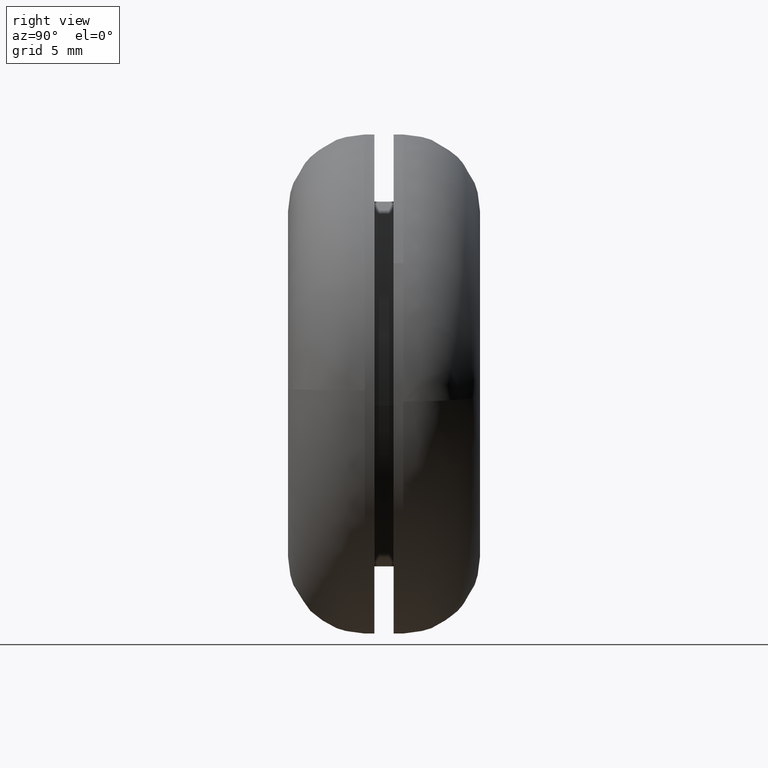
[diagram: clean part render]
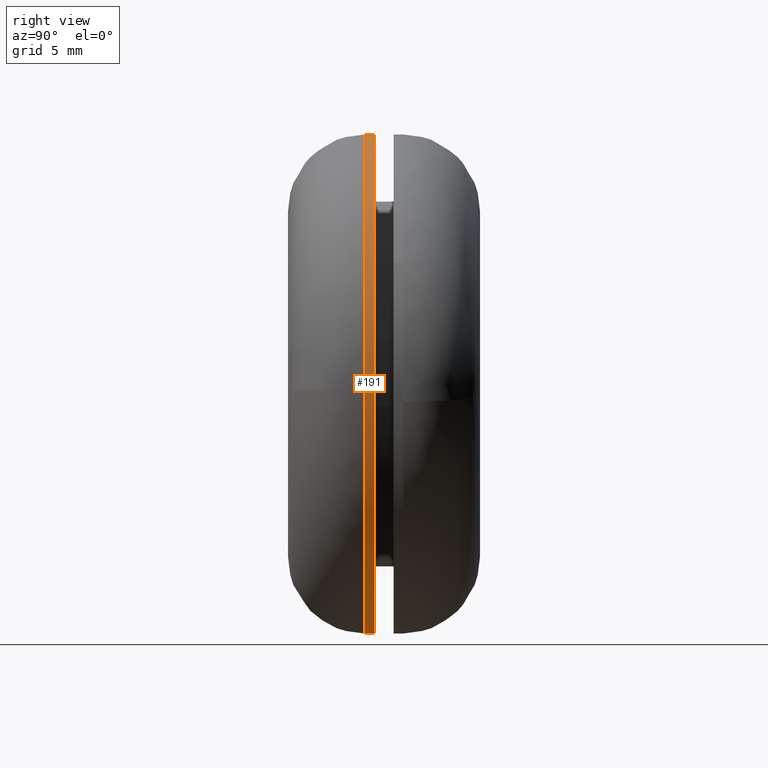
[diagram: same view with one face highlighted and labeled with its STEP entity id]
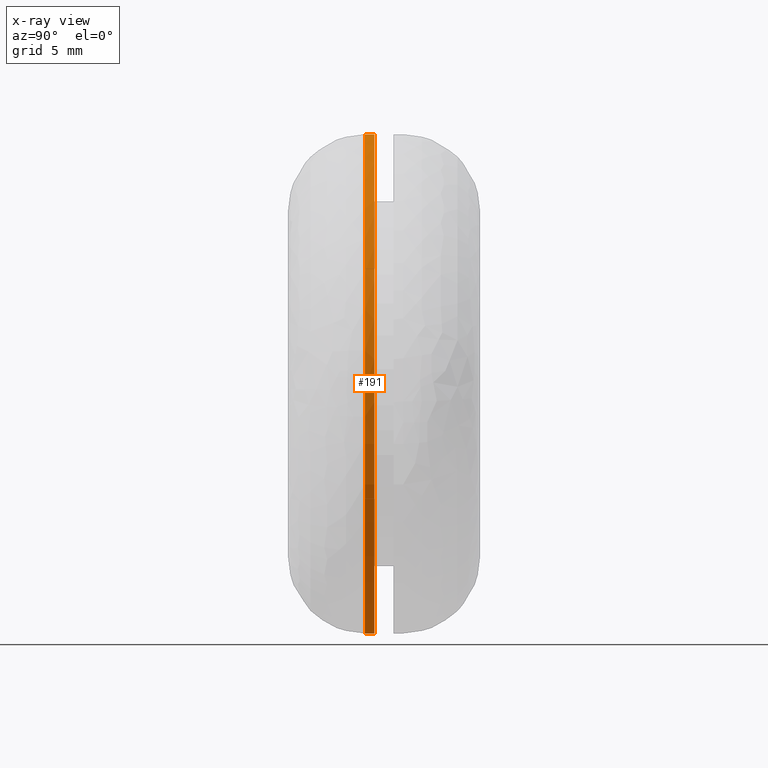
[diagram: x-ray of the same camera — body ghosted, the highlighted face saturated]
A machine part, right view. The second image highlights one B-rep face of the part: STEP entity #191.
The next image is the same camera in x-ray: the body ghosted, the highlighted face saturated — about 0% of this face is hidden behind the body in this view.
In plain terms, the highlighted face is a freeform B-spline surface patch.
Its self-contained STEP definition (entity closure, byte-faithful):
#44=CARTESIAN_POINT('',(-8.506415541035160,4.512500000000001,-9.830610084996524));
#45=CARTESIAN_POINT('',(0.247661153719898,4.512500000000001,-17.405502528073665));
#46=CARTESIAN_POINT('',(8.782672699003580,4.512500000000001,-9.584605378531608));
#47=CARTESIAN_POINT('',(18.367278077535193,4.512500000000001,-0.801932679528027));
#48=CARTESIAN_POINT('',(9.584605378531608,4.512500000000001,8.782672699003580));
#49=CARTESIAN_POINT('',(0.801932679528027,4.512500000000001,18.367278077535193));
#50=CARTESIAN_POINT('',(-8.782672699003580,4.512500000000001,9.584605378531608));
#51=CARTESIAN_POINT('',(-8.506415541035160,3.987187499999999,-9.830610084996524));
#52=CARTESIAN_POINT('',(0.247661153719898,3.987187500000001,-17.405502528073665));
#53=CARTESIAN_POINT('',(8.782672699003580,3.987187500000000,-9.584605378531608));
#54=CARTESIAN_POINT('',(18.367278077535193,3.987187500000001,-0.801932679528027));
#55=CARTESIAN_POINT('',(9.584605378531608,3.987187500000000,8.782672699003580));
#56=CARTESIAN_POINT('',(0.801932679528027,3.987187500000001,18.367278077535193));
#57=CARTESIAN_POINT('',(-8.782672699003580,3.987187500000000,9.584605378531608));
#65=(BOUNDED_SURFACE()B_SPLINE_SURFACE(2,1,((#44,#51),(#45,#52),(#46,#53),(#47,#54),(#48,#55),(#49,#56),(#50,#57)),.UNSPECIFIED.,.F.,.F.,.U.)B_SPLINE_SURFACE_WITH_KNOTS((3,2,2,3),(2,2),(0.0,19.815976823928860,41.355082067329803,62.894187310730729),(0.0,1.0),.UNSPECIFIED.)GEOMETRIC_REPRESENTATION_ITEM()RATIONAL_B_SPLINE_SURFACE(((0.956886118190660,0.956886118190660),(0.730538238691624,0.730538238691624),(1.0,1.0),(0.707106781186548,0.707106781186548),(1.0,1.0),(0.707106781186548,0.707106781186548),(1.0,1.0)))REPRESENTATION_ITEM('')SURFACE());
#66=CARTESIAN_POINT('',(-8.506415111618846,4.500000000000044,-9.830610456569934));
#67=VERTEX_POINT('',#66);
#68=CARTESIAN_POINT('',(0.0,4.500000000000000,-13.0));
#69=VERTEX_POINT('',#68);
#70=CARTESIAN_POINT('',(-8.506415111618846,4.500000000000044,-9.830610456569934));
#71=CARTESIAN_POINT('',(-4.843645739531268,4.500000000000000,-13.000000000000005));
#72=CARTESIAN_POINT('',(0.0,4.500000000000000,-13.0));
#80=(BOUNDED_CURVE()B_SPLINE_CURVE(2,(#70,#71,#72),.UNSPECIFIED.,.F.,.U.)B_SPLINE_CURVE_WITH_KNOTS((3,3),(0.885882133147832,1.0),.UNSPECIFIED.)CURVE()GEOMETRIC_REPRESENTATION_ITEM()RATIONAL_B_SPLINE_CURVE((0.854663299575205,0.866302602614174,1.0))REPRESENTATION_ITEM(''));
#81=EDGE_CURVE('',#67,#69,#80,.T.);
#82=ORIENTED_EDGE('',*,*,#81,.T.);
#83=CARTESIAN_POINT('',(0.0,4.500000000000000,13.0));
#84=VERTEX_POINT('',#83);
#85=CARTESIAN_POINT('',(0.0,4.500000000000000,-13.0));
#86=CARTESIAN_POINT('',(13.0,4.500000000000000,-13.0));
#87=CARTESIAN_POINT('',(13.0,4.500000000000000,-2.449213E-016));
#88=CARTESIAN_POINT('',(13.0,4.500000000000000,13.0));
#89=CARTESIAN_POINT('',(0.0,4.500000000000000,13.0));
#97=(BOUNDED_CURVE()B_SPLINE_CURVE(2,(#85,#86,#87,#88,#89),.UNSPECIFIED.,.F.,.U.)B_SPLINE_CURVE_WITH_KNOTS((3,2,3),(0.0,0.250000000000000,0.500000000000000),.UNSPECIFIED.)CURVE()GEOMETRIC_REPRESENTATION_ITEM()RATIONAL_B_SPLINE_CURVE((1.0,0.707106781186547,1.0,0.707106781186547,1.0))REPRESENTATION_ITEM(''));
#98=EDGE_CURVE('',#69,#84,#97,.T.);
#99=ORIENTED_EDGE('',*,*,#98,.T.);
#100=CARTESIAN_POINT('',(-8.782672184095716,4.500000000000000,9.584605850357690));
#101=VERTEX_POINT('',#100);
#102=CARTESIAN_POINT('',(0.0,4.500000000000000,13.0));
#103=CARTESIAN_POINT('',(-5.055422710082569,4.500000000000000,13.000000000000002));
#104=CARTESIAN_POINT('',(-8.782672184095716,4.500000000000001,9.584605850357690));
#112=(BOUNDED_CURVE()B_SPLINE_CURVE(2,(#102,#103,#104),.UNSPECIFIED.,.F.,.U.)B_SPLINE_CURVE_WITH_KNOTS((3,3),(0.500000000000000,0.618415192864190),.UNSPECIFIED.)CURVE()GEOMETRIC_REPRESENTATION_ITEM()RATIONAL_B_SPLINE_CURVE((1.0,0.861267972022367,0.853959782840026))REPRESENTATION_ITEM(''));
#113=EDGE_CURVE('',#84,#101,#112,.T.);
#114=ORIENTED_EDGE('',*,*,#113,.T.);
#115=CARTESIAN_POINT('',(-8.782672160673663,4.000002019822239,9.584605871818566));
#116=VERTEX_POINT('',#115);
#117=CARTESIAN_POINT('',(-8.782672184095716,4.500000000000000,9.584605850357690));
#118=CARTESIAN_POINT('',(-8.782672160673663,4.000002019822239,9.584605871818566));
#119=QUASI_UNIFORM_CURVE('',1,(#117,#118),.UNSPECIFIED.,.F.,.U.);
#120=EDGE_CURVE('',#101,#116,#119,.T.);
#121=ORIENTED_EDGE('',*,*,#120,.T.);
#122=CARTESIAN_POINT('',(0.0,4.0,13.0));
#123=VERTEX_POINT('',#122);
#124=CARTESIAN_POINT('',(0.0,4.0,13.0));
#125=CARTESIAN_POINT('',(-5.055422673511163,4.000000842962812,12.999999999999972));
#126=CARTESIAN_POINT('',(-8.782672160673663,4.000002019822239,9.584605871818566));
#134=(BOUNDED_CURVE()B_SPLINE_CURVE(2,(#124,#125,#126),.UNSPECIFIED.,.F.,.U.)B_SPLINE_CURVE_WITH_KNOTS((3,3),(0.500000000000000,0.618415192126431),.UNSPECIFIED.)CURVE()GEOMETRIC_REPRESENTATION_ITEM()RATIONAL_B_SPLINE_CURVE((1.0,0.861267972886705,0.853959782931090))REPRESENTATION_ITEM(''));
#135=EDGE_CURVE('',#123,#116,#134,.T.);
#136=ORIENTED_EDGE('',*,*,#135,.F.);
#137=CARTESIAN_POINT('',(12.995894645944650,4.000004227741041,-0.326683870640508));
#138=VERTEX_POINT('',#137);
#139=CARTESIAN_POINT('',(12.995894645944643,4.000004227741041,-0.326683870640508));
#140=CARTESIAN_POINT('',(12.999999999993484,4.000004201835933,-0.163367730796137));
#141=CARTESIAN_POINT('',(12.999999999993520,4.000004175271455,1.632349E-013));
#142=CARTESIAN_POINT('',(12.999999999996801,4.000002061400934,13.000000000000082));
#143=CARTESIAN_POINT('',(0.0,4.0,13.0));
#151=(BOUNDED_CURVE()B_SPLINE_CURVE(2,(#139,#140,#141,#142,#143),.UNSPECIFIED.,.F.,.U.)B_SPLINE_CURVE_WITH_KNOTS((3,2,3),(0.245579991001986,0.250000000000000,0.500000000000000),.UNSPECIFIED.)CURVE()GEOMETRIC_REPRESENTATION_ITEM()RATIONAL_B_SPLINE_CURVE((0.989826381975178,0.994821637349549,1.0,0.707106781186547,1.0))REPRESENTATION_ITEM(''));
#152=EDGE_CURVE('',#138,#123,#151,.T.);
#153=ORIENTED_EDGE('',*,*,#152,.F.);
#154=CARTESIAN_POINT('',(0.0,4.0,-13.0));
#155=VERTEX_POINT('',#154);
#156=CARTESIAN_POINT('',(0.0,4.0,-13.0));
#157=CARTESIAN_POINT('',(12.677319582069439,4.000002113870520,-12.999999999999917));
#158=CARTESIAN_POINT('',(12.995894645944643,4.000004227741041,-0.326683870640508));
#166=(BOUNDED_CURVE()B_SPLINE_CURVE(2,(#156,#157,#158),.UNSPECIFIED.,.F.,.U.)B_SPLINE_CURVE_WITH_KNOTS((3,3),(0.0,0.245579991001986),.UNSPECIFIED.)CURVE()GEOMETRIC_REPRESENTATION_ITEM()RATIONAL_B_SPLINE_CURVE((1.0,0.712285143836998,0.989826381975178))REPRESENTATION_ITEM(''));
#167=EDGE_CURVE('',#155,#138,#166,.T.);
#168=ORIENTED_EDGE('',*,*,#167,.F.);
#169=CARTESIAN_POINT('',(-8.506415116792454,4.000001864216555,-9.830610452092005));
#170=VERTEX_POINT('',#169);
#171=CARTESIAN_POINT('',(-8.506415116792454,4.000001864216554,-9.830610452092005));
#172=CARTESIAN_POINT('',(-4.843645747323591,4.000000768053528,-13.000000000000034));
#173=CARTESIAN_POINT('',(0.0,4.0,-13.0));
#181=(BOUNDED_CURVE()B_SPLINE_CURVE(2,(#171,#172,#173),.UNSPECIFIED.,.F.,.U.)B_SPLINE_CURVE_WITH_KNOTS((3,3),(0.885882132988764,1.0),.UNSPECIFIED.)CURVE()GEOMETRIC_REPRESENTATION_ITEM()RATIONAL_B_SPLINE_CURVE((0.854663299542757,0.866302602427814,1.0))REPRESENTATION_ITEM(''));
#182=EDGE_CURVE('',#170,#155,#181,.T.);
#183=ORIENTED_EDGE('',*,*,#182,.F.);
#184=CARTESIAN_POINT('',(-8.506415111618846,4.500000000000044,-9.830610456569934));
#185=CARTESIAN_POINT('',(-8.506415116792454,4.000001864216555,-9.830610452092005));
#186=QUASI_UNIFORM_CURVE('',1,(#184,#185),.UNSPECIFIED.,.F.,.U.);
#187=EDGE_CURVE('',#67,#170,#186,.T.);
#188=ORIENTED_EDGE('',*,*,#187,.F.);
#189=EDGE_LOOP('',(#82,#99,#114,#121,#136,#153,#168,#183,#188));
#190=FACE_OUTER_BOUND('',#189,.T.);
#191=ADVANCED_FACE('',(#190),#65,.T.);